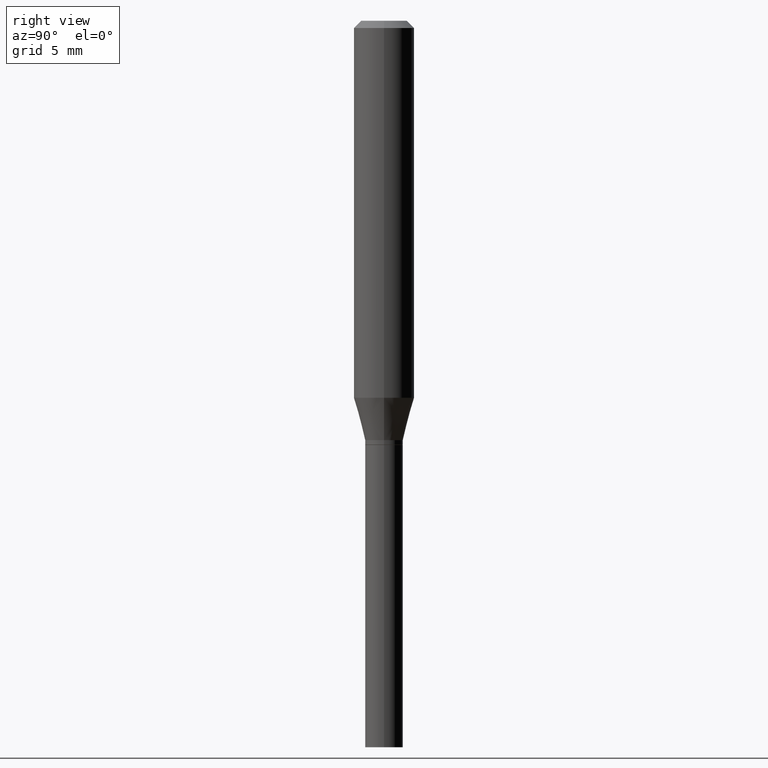
[diagram: clean part render]
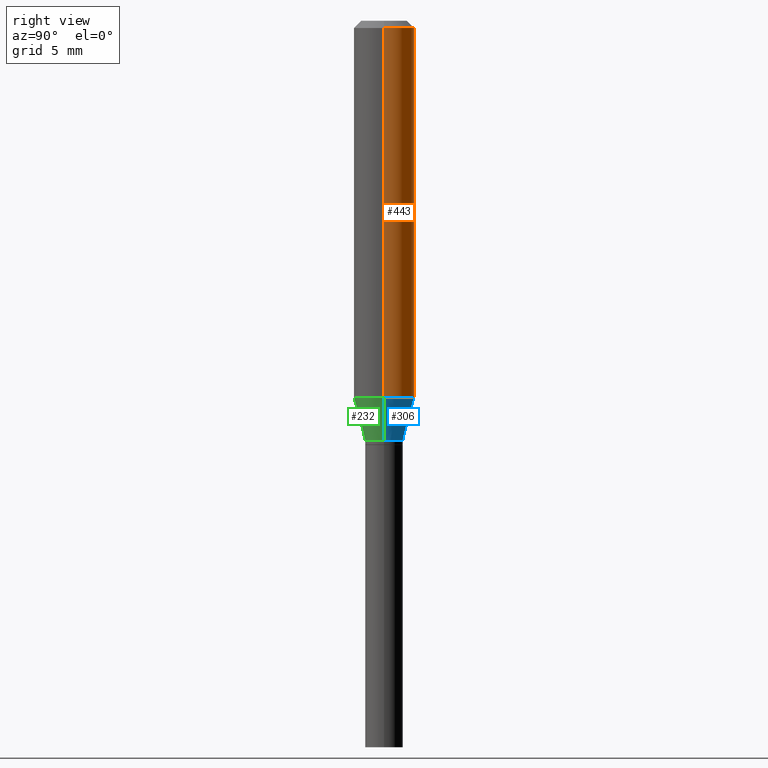
[diagram: same view with three faces highlighted in distinct colors, each labeled with its STEP entity id]
A machine part, right view with three faces highlighted in distinct colors.
Their STEP definitions:

[orange] entity #443 — the highlighted cylindrical surface (edge-blend (fillet) strip) has radius 1.5875 mm, axis along (-0, 0, 1).
#3 = CARTESIAN_POINT ( 'NONE',  ( 3.668203209277705088E-31, -5.237222008264718399E-17, -0.01499999999999999944 ) ) ;
#7 = DIRECTION ( 'NONE',  ( 1.000000000000000000, -6.982962677686266711E-15, 4.876176775795935793E-29 ) ) ;
#30 = DIRECTION ( 'NONE',  ( -2.445468806185136597E-29, 3.491481338843145583E-15, 1.000000000000000000 ) ) ;
#43 = VERTEX_POINT ( 'NONE', #221 ) ;
#45 = DIRECTION ( 'NONE',  ( -2.445468806185136597E-29, 3.491481338843145583E-15, 1.000000000000000000 ) ) ;
#56 = CARTESIAN_POINT ( 'NONE',  ( 0.06250000000000000000, -4.364351673553916694E-16, 3.047610484872459871E-30 ) ) ;
#61 = DIRECTION ( 'NONE',  ( -2.445468806185136877E-29, 3.491481338843145188E-15, 1.000000000000000000 ) ) ;
#70 = CARTESIAN_POINT ( 'NONE',  ( -0.06250000000000000000, 4.440892098500626162E-16, -3.074334431409316114E-30 ) ) ;
#91 = ORIENTED_EDGE ( 'NONE', *, *, #274, .T. ) ;
#116 = CARTESIAN_POINT ( 'NONE',  ( 1.903300561080647915E-29, -2.717408774307497209E-15, -0.7782968060221319151 ) ) ;
#131 = CIRCLE ( 'NONE', #391, 0.06250000000000000000 ) ;
#136 = CARTESIAN_POINT ( 'NONE',  ( -0.06250000000000000000, -2.273319564457434988E-15, -0.7782968060221319151 ) ) ;
#137 = ORIENTED_EDGE ( 'NONE', *, *, #367, .F. ) ;
#147 = VERTEX_POINT ( 'NONE', #136 ) ;
#151 = ORIENTED_EDGE ( 'NONE', *, *, #238, .F. ) ;
#152 = DIRECTION ( 'NONE',  ( -2.445468806185136877E-29, 3.491481338843145188E-15, 1.000000000000000000 ) ) ;
#190 = CIRCLE ( 'NONE', #341, 0.06250000000000000000 ) ;
#193 = VECTOR ( 'NONE', #152, 39.37007874015748143 ) ;
#213 = DIRECTION ( 'NONE',  ( 1.000000000000000000, -6.982962677686262766E-15, 0.000000000000000000 ) ) ;
#221 = CARTESIAN_POINT ( 'NONE',  ( 0.06250000000000000000, -3.153843941662889668E-15, -0.7782968060221319151 ) ) ;
#238 = EDGE_CURVE ( 'NONE', #43, #365, #315, .T. ) ;
#253 = DIRECTION ( 'NONE',  ( 1.000000000000000000, -6.982962677686266711E-15, 0.000000000000000000 ) ) ;
#274 = EDGE_CURVE ( 'NONE', #147, #357, #358, .T. ) ;
#299 = ORIENTED_EDGE ( 'NONE', *, *, #373, .T. ) ;
#303 = CYLINDRICAL_SURFACE ( 'NONE', #342, 0.06250000000000000000 ) ;
#315 = LINE ( 'NONE', #56, #382 ) ;
#318 = EDGE_LOOP ( 'NONE', ( #299, #91, #137, #151 ) ) ;
#334 = CARTESIAN_POINT ( 'NONE',  ( 0.000000000000000000, 0.000000000000000000, 0.000000000000000000 ) ) ;
#341 = AXIS2_PLACEMENT_3D ( 'NONE', #116, #30, #213 ) ;
#342 = AXIS2_PLACEMENT_3D ( 'NONE', #334, #45, #7 ) ;
#352 = CARTESIAN_POINT ( 'NONE',  ( 0.06250000000000000000, -4.888073874380388472E-16, -0.01499999999999999944 ) ) ;
#357 = VERTEX_POINT ( 'NONE', #364 ) ;
#358 = LINE ( 'NONE', #70, #193 ) ;
#364 = CARTESIAN_POINT ( 'NONE',  ( -0.06250000000000000000, -9.408012873450095281E-16, -0.01499999999999999944 ) ) ;
#365 = VERTEX_POINT ( 'NONE', #352 ) ;
#367 = EDGE_CURVE ( 'NONE', #365, #357, #131, .T. ) ;
#372 = FACE_OUTER_BOUND ( 'NONE', #318, .T. ) ;
#373 = EDGE_CURVE ( 'NONE', #43, #147, #190, .T. ) ;
#382 = VECTOR ( 'NONE', #61, 39.37007874015748143 ) ;
#391 = AXIS2_PLACEMENT_3D ( 'NONE', #3, #434, #253 ) ;
#434 = DIRECTION ( 'NONE',  ( -2.445468806185136597E-29, 3.491481338843145583E-15, 1.000000000000000000 ) ) ;
#443 = ADVANCED_FACE ( 'NONE', ( #372 ), #303, .T. ) ;

[blue] entity #306 — the highlighted conical surface has half-angle 15 deg.
#17 = DIRECTION ( 'NONE',  ( 0.2588190451025214611, 1.565188264969621573E-15, 0.9659258262890682012 ) ) ;
#18 = CARTESIAN_POINT ( 'NONE',  ( 0.03900000000000005546, -3.295958383867929689E-15, -0.8660000000000001030 ) ) ;
#30 = DIRECTION ( 'NONE',  ( -2.445468806185136597E-29, 3.491481338843145583E-15, 1.000000000000000000 ) ) ;
#33 = EDGE_LOOP ( 'NONE', ( #181, #68, #353, #206 ) ) ;
#34 = FACE_OUTER_BOUND ( 'NONE', #33, .T. ) ;
#43 = VERTEX_POINT ( 'NONE', #221 ) ;
#68 = ORIENTED_EDGE ( 'NONE', *, *, #224, .T. ) ;
#93 = CARTESIAN_POINT ( 'NONE',  ( -0.03900000000000005546, -2.746511172491725164E-15, -0.8660000000000001030 ) ) ;
#94 = DIRECTION ( 'NONE',  ( -0.2588190451025214611, 5.211531920934551042E-15, 0.9659258262890682012 ) ) ;
#102 = LINE ( 'NONE', #93, #376 ) ;
#110 = EDGE_CURVE ( 'NONE', #260, #43, #243, .T. ) ;
#116 = CARTESIAN_POINT ( 'NONE',  ( 1.903300561080647915E-29, -2.717408774307497209E-15, -0.7782968060221319151 ) ) ;
#134 = CARTESIAN_POINT ( 'NONE',  ( 2.117775986156328580E-29, -3.023622839438164482E-15, -0.8660000000000001030 ) ) ;
#136 = CARTESIAN_POINT ( 'NONE',  ( -0.06250000000000000000, -2.273319564457434988E-15, -0.7782968060221319151 ) ) ;
#145 = DIRECTION ( 'NONE',  ( -2.445468806185136597E-29, 3.491481338843145583E-15, 1.000000000000000000 ) ) ;
#147 = VERTEX_POINT ( 'NONE', #136 ) ;
#161 = CONICAL_SURFACE ( 'NONE', #257, 0.03900000000000005546, 0.2617993877991501295 ) ;
#166 = CARTESIAN_POINT ( 'NONE',  ( 0.03900000000000005546, -3.295958383867929689E-15, -0.8660000000000001030 ) ) ;
#176 = AXIS2_PLACEMENT_3D ( 'NONE', #134, #387, #205 ) ;
#181 = ORIENTED_EDGE ( 'NONE', *, *, #218, .T. ) ;
#186 = CARTESIAN_POINT ( 'NONE',  ( -0.03900000000000005546, -2.509915368474579681E-15, -0.8660000000000001030 ) ) ;
#190 = CIRCLE ( 'NONE', #341, 0.06250000000000000000 ) ;
#205 = DIRECTION ( 'NONE',  ( 1.000000000000000000, -6.982962677686273810E-15, 0.000000000000000000 ) ) ;
#206 = ORIENTED_EDGE ( 'NONE', *, *, #110, .F. ) ;
#213 = DIRECTION ( 'NONE',  ( 1.000000000000000000, -6.982962677686262766E-15, 0.000000000000000000 ) ) ;
#218 = EDGE_CURVE ( 'NONE', #260, #350, #399, .T. ) ;
#221 = CARTESIAN_POINT ( 'NONE',  ( 0.06250000000000000000, -3.153843941662889668E-15, -0.7782968060221319151 ) ) ;
#224 = EDGE_CURVE ( 'NONE', #350, #147, #102, .T. ) ;
#243 = LINE ( 'NONE', #166, #250 ) ;
#250 = VECTOR ( 'NONE', #17, 39.37007874015747433 ) ;
#257 = AXIS2_PLACEMENT_3D ( 'NONE', #293, #145, #431 ) ;
#260 = VERTEX_POINT ( 'NONE', #18 ) ;
#293 = CARTESIAN_POINT ( 'NONE',  ( 2.117775986156328580E-29, -3.023622839438164482E-15, -0.8660000000000001030 ) ) ;
#306 = ADVANCED_FACE ( 'NONE', ( #34 ), #161, .T. ) ;
#341 = AXIS2_PLACEMENT_3D ( 'NONE', #116, #30, #213 ) ;
#350 = VERTEX_POINT ( 'NONE', #186 ) ;
#353 = ORIENTED_EDGE ( 'NONE', *, *, #373, .F. ) ;
#373 = EDGE_CURVE ( 'NONE', #43, #147, #190, .T. ) ;
#376 = VECTOR ( 'NONE', #94, 39.37007874015747433 ) ;
#387 = DIRECTION ( 'NONE',  ( -2.445468806185136597E-29, 3.491481338843145583E-15, 1.000000000000000000 ) ) ;
#399 = CIRCLE ( 'NONE', #176, 0.03900000000000005546 ) ;
#431 = DIRECTION ( 'NONE',  ( 1.000000000000000000, -6.982962677686273810E-15, 0.000000000000000000 ) ) ;

[green] entity #232 — the highlighted conical surface has half-angle 15 deg.
#10 = ORIENTED_EDGE ( 'NONE', *, *, #355, .F. ) ;
#17 = DIRECTION ( 'NONE',  ( 0.2588190451025214611, 1.565188264969621573E-15, 0.9659258262890682012 ) ) ;
#18 = CARTESIAN_POINT ( 'NONE',  ( 0.03900000000000005546, -3.295958383867929689E-15, -0.8660000000000001030 ) ) ;
#29 = AXIS2_PLACEMENT_3D ( 'NONE', #413, #380, #105 ) ;
#36 = DIRECTION ( 'NONE',  ( 1.000000000000000000, -6.982962677686262766E-15, 0.000000000000000000 ) ) ;
#43 = VERTEX_POINT ( 'NONE', #221 ) ;
#76 = DIRECTION ( 'NONE',  ( -2.445468806185136597E-29, 3.491481338843145583E-15, 1.000000000000000000 ) ) ;
#93 = CARTESIAN_POINT ( 'NONE',  ( -0.03900000000000005546, -2.746511172491725164E-15, -0.8660000000000001030 ) ) ;
#94 = DIRECTION ( 'NONE',  ( -0.2588190451025214611, 5.211531920934551042E-15, 0.9659258262890682012 ) ) ;
#102 = LINE ( 'NONE', #93, #376 ) ;
#105 = DIRECTION ( 'NONE',  ( 1.000000000000000000, -6.982962677686273810E-15, 0.000000000000000000 ) ) ;
#110 = EDGE_CURVE ( 'NONE', #260, #43, #243, .T. ) ;
#115 = CIRCLE ( 'NONE', #123, 0.03900000000000005546 ) ;
#123 = AXIS2_PLACEMENT_3D ( 'NONE', #445, #310, #132 ) ;
#132 = DIRECTION ( 'NONE',  ( 1.000000000000000000, -6.982962677686273810E-15, 0.000000000000000000 ) ) ;
#136 = CARTESIAN_POINT ( 'NONE',  ( -0.06250000000000000000, -2.273319564457434988E-15, -0.7782968060221319151 ) ) ;
#147 = VERTEX_POINT ( 'NONE', #136 ) ;
#148 = CARTESIAN_POINT ( 'NONE',  ( 1.903300561080647915E-29, -2.717408774307497209E-15, -0.7782968060221319151 ) ) ;
#154 = CONICAL_SURFACE ( 'NONE', #29, 0.03900000000000005546, 0.2617993877991501295 ) ;
#159 = EDGE_CURVE ( 'NONE', #350, #260, #115, .T. ) ;
#166 = CARTESIAN_POINT ( 'NONE',  ( 0.03900000000000005546, -3.295958383867929689E-15, -0.8660000000000001030 ) ) ;
#186 = CARTESIAN_POINT ( 'NONE',  ( -0.03900000000000005546, -2.509915368474579681E-15, -0.8660000000000001030 ) ) ;
#208 = AXIS2_PLACEMENT_3D ( 'NONE', #148, #76, #36 ) ;
#221 = CARTESIAN_POINT ( 'NONE',  ( 0.06250000000000000000, -3.153843941662889668E-15, -0.7782968060221319151 ) ) ;
#224 = EDGE_CURVE ( 'NONE', #350, #147, #102, .T. ) ;
#227 = CIRCLE ( 'NONE', #208, 0.06250000000000000000 ) ;
#232 = ADVANCED_FACE ( 'NONE', ( #415 ), #154, .T. ) ;
#243 = LINE ( 'NONE', #166, #250 ) ;
#250 = VECTOR ( 'NONE', #17, 39.37007874015747433 ) ;
#260 = VERTEX_POINT ( 'NONE', #18 ) ;
#269 = ORIENTED_EDGE ( 'NONE', *, *, #159, .T. ) ;
#294 = ORIENTED_EDGE ( 'NONE', *, *, #110, .T. ) ;
#310 = DIRECTION ( 'NONE',  ( -2.445468806185136597E-29, 3.491481338843145583E-15, 1.000000000000000000 ) ) ;
#350 = VERTEX_POINT ( 'NONE', #186 ) ;
#355 = EDGE_CURVE ( 'NONE', #147, #43, #227, .T. ) ;
#376 = VECTOR ( 'NONE', #94, 39.37007874015747433 ) ;
#380 = DIRECTION ( 'NONE',  ( -2.445468806185136597E-29, 3.491481338843145583E-15, 1.000000000000000000 ) ) ;
#384 = EDGE_LOOP ( 'NONE', ( #454, #269, #294, #10 ) ) ;
#413 = CARTESIAN_POINT ( 'NONE',  ( 2.117775986156328580E-29, -3.023622839438164482E-15, -0.8660000000000001030 ) ) ;
#415 = FACE_OUTER_BOUND ( 'NONE', #384, .T. ) ;
#445 = CARTESIAN_POINT ( 'NONE',  ( 2.117775986156328580E-29, -3.023622839438164482E-15, -0.8660000000000001030 ) ) ;
#454 = ORIENTED_EDGE ( 'NONE', *, *, #224, .F. ) ;